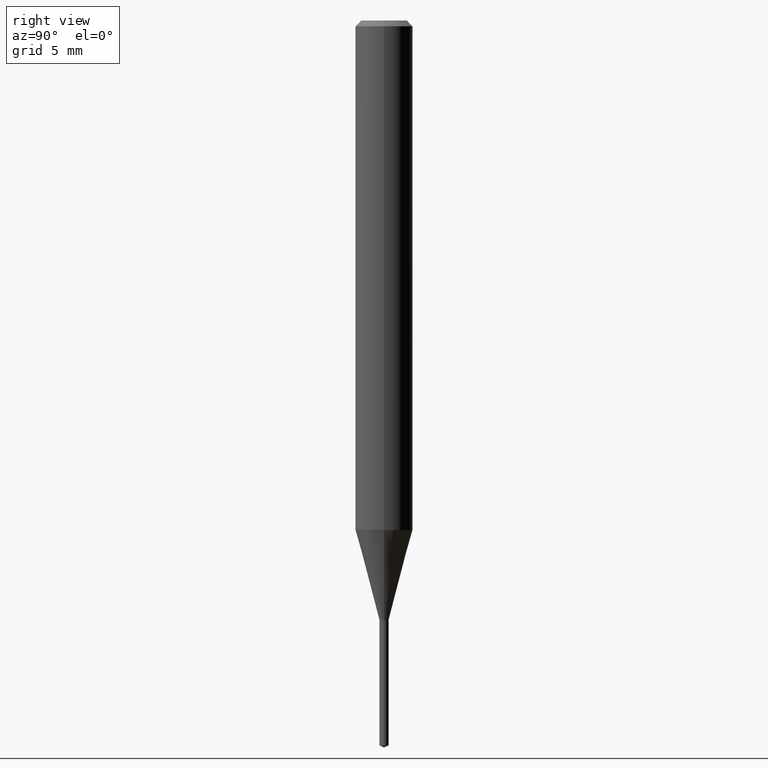
[diagram: clean part render]
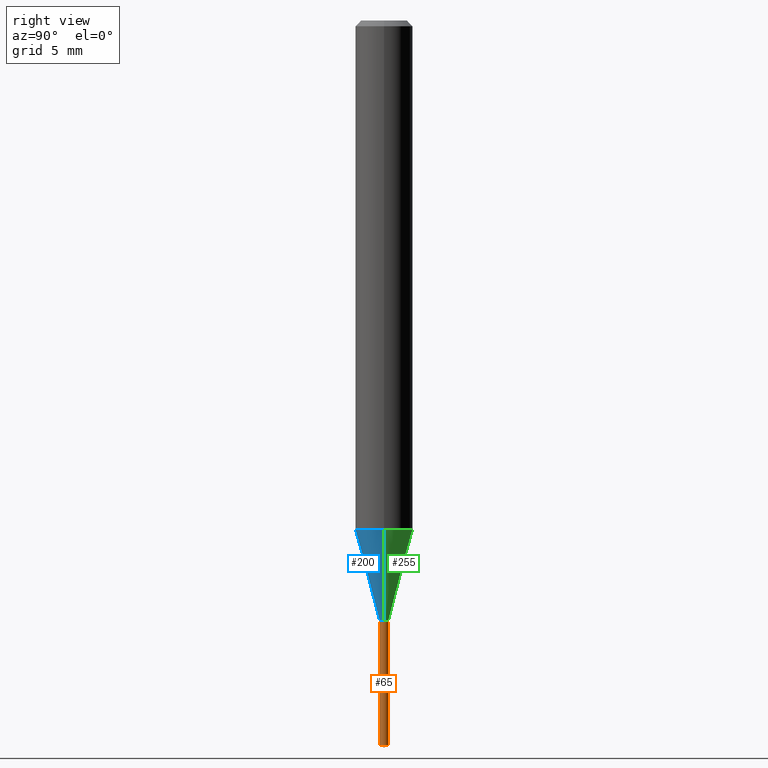
[diagram: same view with three faces highlighted in distinct colors, each labeled with its STEP entity id]
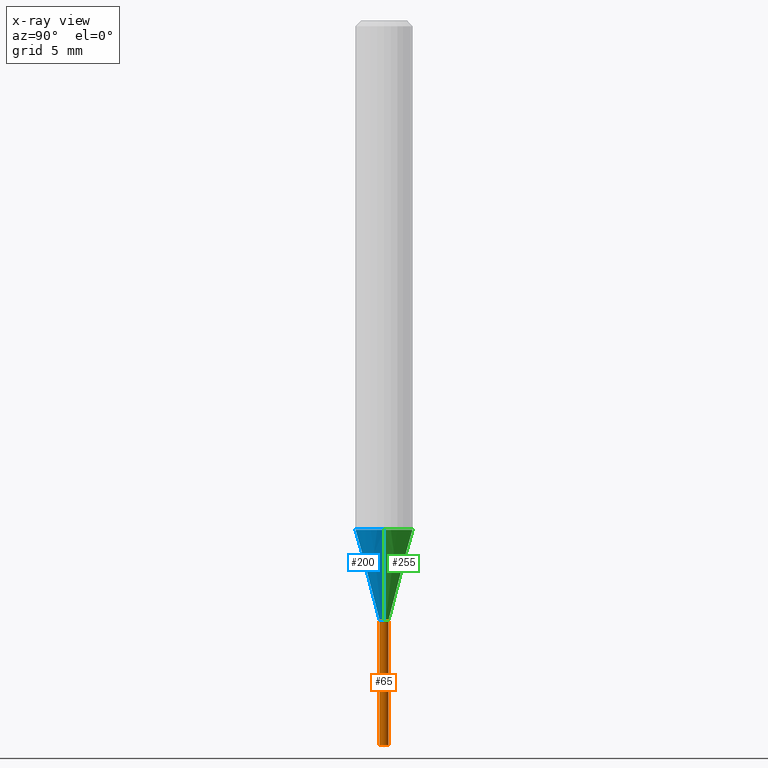
[diagram: x-ray of the same camera — body ghosted, the three highlighted faces saturated]
A machine part, right view with three faces highlighted in distinct colors.
The next image is the same camera in x-ray (body ghosted, the three faces saturated) — at least one of them is partly hidden behind the body in this view.
Their STEP definitions:

[orange] entity #65 — the highlighted cylindrical surface (edge-blend (fillet) strip) has radius 0.24 mm, axis along (-0, 0, 1).
#9 = VERTEX_POINT ( 'NONE', #413 ) ;
#42 = LINE ( 'NONE', #185, #244 ) ;
#43 = EDGE_CURVE ( 'NONE', #201, #97, #102, .T. ) ;
#44 = CARTESIAN_POINT ( 'NONE',  ( 6.714628852935969127E-17, 0.009449999999995684075, -1.236299999999999955 ) ) ;
#48 = VECTOR ( 'NONE', #105, 39.37007874015748143 ) ;
#57 = CARTESIAN_POINT ( 'NONE',  ( -6.598899730410497825E-17, -0.009450000000004316059, -1.236299999999999955 ) ) ;
#61 = VERTEX_POINT ( 'NONE', #457 ) ;
#65 = ADVANCED_FACE ( 'NONE', ( #335 ), #74, .T. ) ;
#73 = ORIENTED_EDGE ( 'NONE', *, *, #190, .T. ) ;
#74 = CYLINDRICAL_SURFACE ( 'NONE', #449, 0.009450000000000000067 ) ;
#77 = DIRECTION ( 'NONE',  ( -6.982962677686265922E-15, -1.000000000000000000, 0.000000000000000000 ) ) ;
#78 = EDGE_CURVE ( 'NONE', #9, #201, #42, .T. ) ;
#92 = ORIENTED_EDGE ( 'NONE', *, *, #143, .T. ) ;
#97 = VERTEX_POINT ( 'NONE', #380 ) ;
#102 = CIRCLE ( 'NONE', #269, 0.009450000000000000067 ) ;
#105 = DIRECTION ( 'NONE',  ( -2.445453492125453683E-29, 3.491503269448233447E-15, 1.000000000000000000 ) ) ;
#109 = CARTESIAN_POINT ( 'NONE',  ( 3.023333085086683703E-29, -4.316518379211780118E-15, -1.236299999999999955 ) ) ;
#143 = EDGE_CURVE ( 'NONE', #61, #97, #228, .T. ) ;
#159 = AXIS2_PLACEMENT_3D ( 'NONE', #258, #180, #262 ) ;
#180 = DIRECTION ( 'NONE',  ( -2.445453492125453683E-29, 3.491503269448233447E-15, 1.000000000000000000 ) ) ;
#185 = CARTESIAN_POINT ( 'NONE',  ( -6.598899730410497825E-17, -0.009450000000004316059, -1.236299999999999955 ) ) ;
#190 = EDGE_CURVE ( 'NONE', #9, #61, #303, .T. ) ;
#201 = VERTEX_POINT ( 'NONE', #57 ) ;
#202 = EDGE_LOOP ( 'NONE', ( #73, #92, #327, #476 ) ) ;
#228 = LINE ( 'NONE', #44, #48 ) ;
#244 = VECTOR ( 'NONE', #291, 39.37007874015748143 ) ;
#258 = CARTESIAN_POINT ( 'NONE',  ( 3.647885748960549596E-29, -5.208225244576422612E-15, -1.491693392630435211 ) ) ;
#262 = DIRECTION ( 'NONE',  ( -6.982962677686265922E-15, -1.000000000000000000, 0.000000000000000000 ) ) ;
#269 = AXIS2_PLACEMENT_3D ( 'NONE', #485, #410, #452 ) ;
#291 = DIRECTION ( 'NONE',  ( -2.445453492125453683E-29, 3.491503269448233447E-15, 1.000000000000000000 ) ) ;
#303 = CIRCLE ( 'NONE', #159, 0.009450000000000000067 ) ;
#327 = ORIENTED_EDGE ( 'NONE', *, *, #43, .F. ) ;
#335 = FACE_OUTER_BOUND ( 'NONE', #202, .T. ) ;
#380 = CARTESIAN_POINT ( 'NONE',  ( 6.714628852936598983E-17, 0.009449999999995684075, -1.236299999999999955 ) ) ;
#410 = DIRECTION ( 'NONE',  ( -2.445453492125453683E-29, 3.491503269448233447E-15, 1.000000000000000000 ) ) ;
#413 = CARTESIAN_POINT ( 'NONE',  ( -6.598899730409874132E-17, -0.009450000000005209441, -1.491693392630435211 ) ) ;
#449 = AXIS2_PLACEMENT_3D ( 'NONE', #109, #484, #77 ) ;
#452 = DIRECTION ( 'NONE',  ( -6.982962677686265922E-15, -1.000000000000000000, 0.000000000000000000 ) ) ;
#457 = CARTESIAN_POINT ( 'NONE',  ( 6.714628852936594053E-17, 0.009449999999994792427, -1.491693392630435211 ) ) ;
#476 = ORIENTED_EDGE ( 'NONE', *, *, #78, .F. ) ;
#484 = DIRECTION ( 'NONE',  ( -2.445453492125453683E-29, 3.491503269448233447E-15, 1.000000000000000000 ) ) ;
#485 = CARTESIAN_POINT ( 'NONE',  ( 3.023333085086683703E-29, -4.316518379211780118E-15, -1.236299999999999955 ) ) ;

[blue] entity #200 — the highlighted conical surface has half-angle 15 deg.
#7 = DIRECTION ( 'NONE',  ( -2.445468806185136597E-29, 3.491481338843145583E-15, 1.000000000000000000 ) ) ;
#19 = VERTEX_POINT ( 'NONE', #214 ) ;
#51 = DIRECTION ( 'NONE',  ( 0.2588190451025211281, 1.565188264969622954E-15, 0.9659258262890679791 ) ) ;
#81 = ORIENTED_EDGE ( 'NONE', *, *, #370, .T. ) ;
#85 = CARTESIAN_POINT ( 'NONE',  ( 3.016485772429365584E-29, -4.306742231463019698E-15, -1.233499999999999819 ) ) ;
#89 = DIRECTION ( 'NONE',  ( 1.000000000000000000, -6.982962677686265133E-15, 0.000000000000000000 ) ) ;
#91 = CARTESIAN_POINT ( 'NONE',  ( 0.009449999999999998332, -4.372731228767154900E-15, -1.233499999999999819 ) ) ;
#114 = CARTESIAN_POINT ( 'NONE',  ( -0.05905000000000013016, -3.240859612784714140E-15, -1.048390279944583448 ) ) ;
#121 = VECTOR ( 'NONE', #355, 39.37007874015748854 ) ;
#140 = CIRCLE ( 'NONE', #237, 0.05905000000000013016 ) ;
#153 = CONICAL_SURFACE ( 'NONE', #440, 0.009449999999999998332, 0.2617993877991498519 ) ;
#200 = ADVANCED_FACE ( 'NONE', ( #424 ), #153, .T. ) ;
#206 = VERTEX_POINT ( 'NONE', #241 ) ;
#207 = DIRECTION ( 'NONE',  ( 1.000000000000000000, -6.982962677686298265E-15, 0.000000000000000000 ) ) ;
#214 = CARTESIAN_POINT ( 'NONE',  ( 0.05905000000000013016, -4.072779044368429342E-15, -1.048390279944583448 ) ) ;
#216 = EDGE_CURVE ( 'NONE', #217, #319, #433, .T. ) ;
#217 = VERTEX_POINT ( 'NONE', #349 ) ;
#231 = CARTESIAN_POINT ( 'NONE',  ( -0.009449999999999998332, -4.239595942933689737E-15, -1.233499999999999819 ) ) ;
#233 = DIRECTION ( 'NONE',  ( -2.445468806185136597E-29, 3.491481338843145583E-15, 1.000000000000000000 ) ) ;
#237 = AXIS2_PLACEMENT_3D ( 'NONE', #357, #233, #89 ) ;
#241 = CARTESIAN_POINT ( 'NONE',  ( 0.009449999999999998332, -4.372731228767154900E-15, -1.233499999999999819 ) ) ;
#246 = CIRCLE ( 'NONE', #477, 0.009449999999999998332 ) ;
#247 = CARTESIAN_POINT ( 'NONE',  ( 3.016485772429365584E-29, -4.306742231463019698E-15, -1.233499999999999819 ) ) ;
#249 = EDGE_CURVE ( 'NONE', #319, #19, #140, .T. ) ;
#266 = EDGE_LOOP ( 'NONE', ( #365, #81, #397, #421 ) ) ;
#292 = EDGE_CURVE ( 'NONE', #206, #19, #469, .T. ) ;
#319 = VERTEX_POINT ( 'NONE', #114 ) ;
#349 = CARTESIAN_POINT ( 'NONE',  ( -0.009449999999999998332, -4.243611146473359590E-15, -1.233499999999999819 ) ) ;
#352 = VECTOR ( 'NONE', #51, 39.37007874015748854 ) ;
#355 = DIRECTION ( 'NONE',  ( -0.2588190451025211281, 5.211531920934547886E-15, 0.9659258262890679791 ) ) ;
#357 = CARTESIAN_POINT ( 'NONE',  ( 2.563805726312181007E-29, -3.660435098251054422E-15, -1.048390279944583448 ) ) ;
#363 = DIRECTION ( 'NONE',  ( -2.445468806185136597E-29, 3.491481338843145583E-15, 1.000000000000000000 ) ) ;
#365 = ORIENTED_EDGE ( 'NONE', *, *, #216, .F. ) ;
#370 = EDGE_CURVE ( 'NONE', #217, #206, #246, .T. ) ;
#389 = DIRECTION ( 'NONE',  ( 1.000000000000000000, -6.982962677686298265E-15, 0.000000000000000000 ) ) ;
#397 = ORIENTED_EDGE ( 'NONE', *, *, #292, .T. ) ;
#421 = ORIENTED_EDGE ( 'NONE', *, *, #249, .F. ) ;
#424 = FACE_OUTER_BOUND ( 'NONE', #266, .T. ) ;
#433 = LINE ( 'NONE', #231, #121 ) ;
#440 = AXIS2_PLACEMENT_3D ( 'NONE', #85, #7, #389 ) ;
#469 = LINE ( 'NONE', #91, #352 ) ;
#477 = AXIS2_PLACEMENT_3D ( 'NONE', #247, #363, #207 ) ;

[green] entity #255 — the highlighted conical surface has half-angle 15 deg.
#15 = CONICAL_SURFACE ( 'NONE', #203, 0.009449999999999998332, 0.2617993877991498519 ) ;
#19 = VERTEX_POINT ( 'NONE', #214 ) ;
#22 = EDGE_CURVE ( 'NONE', #19, #319, #56, .T. ) ;
#51 = DIRECTION ( 'NONE',  ( 0.2588190451025211281, 1.565188264969622954E-15, 0.9659258262890679791 ) ) ;
#55 = CARTESIAN_POINT ( 'NONE',  ( 3.016485772429365584E-29, -4.306742231463019698E-15, -1.233499999999999819 ) ) ;
#56 = CIRCLE ( 'NONE', #139, 0.05905000000000013016 ) ;
#91 = CARTESIAN_POINT ( 'NONE',  ( 0.009449999999999998332, -4.372731228767154900E-15, -1.233499999999999819 ) ) ;
#94 = ORIENTED_EDGE ( 'NONE', *, *, #292, .F. ) ;
#114 = CARTESIAN_POINT ( 'NONE',  ( -0.05905000000000013016, -3.240859612784714140E-15, -1.048390279944583448 ) ) ;
#121 = VECTOR ( 'NONE', #355, 39.37007874015748854 ) ;
#132 = ORIENTED_EDGE ( 'NONE', *, *, #22, .F. ) ;
#139 = AXIS2_PLACEMENT_3D ( 'NONE', #379, #416, #263 ) ;
#142 = ORIENTED_EDGE ( 'NONE', *, *, #216, .T. ) ;
#144 = CARTESIAN_POINT ( 'NONE',  ( 3.016485772429365584E-29, -4.306742231463019698E-15, -1.233499999999999819 ) ) ;
#152 = CIRCLE ( 'NONE', #316, 0.009449999999999998332 ) ;
#156 = EDGE_CURVE ( 'NONE', #206, #217, #152, .T. ) ;
#196 = DIRECTION ( 'NONE',  ( -2.445468806185136597E-29, 3.491481338843145583E-15, 1.000000000000000000 ) ) ;
#203 = AXIS2_PLACEMENT_3D ( 'NONE', #55, #196, #351 ) ;
#206 = VERTEX_POINT ( 'NONE', #241 ) ;
#214 = CARTESIAN_POINT ( 'NONE',  ( 0.05905000000000013016, -4.072779044368429342E-15, -1.048390279944583448 ) ) ;
#216 = EDGE_CURVE ( 'NONE', #217, #319, #433, .T. ) ;
#217 = VERTEX_POINT ( 'NONE', #349 ) ;
#231 = CARTESIAN_POINT ( 'NONE',  ( -0.009449999999999998332, -4.239595942933689737E-15, -1.233499999999999819 ) ) ;
#241 = CARTESIAN_POINT ( 'NONE',  ( 0.009449999999999998332, -4.372731228767154900E-15, -1.233499999999999819 ) ) ;
#255 = ADVANCED_FACE ( 'NONE', ( #436 ), #15, .T. ) ;
#263 = DIRECTION ( 'NONE',  ( 1.000000000000000000, -6.982962677686265133E-15, 0.000000000000000000 ) ) ;
#292 = EDGE_CURVE ( 'NONE', #206, #19, #469, .T. ) ;
#316 = AXIS2_PLACEMENT_3D ( 'NONE', #144, #420, #460 ) ;
#319 = VERTEX_POINT ( 'NONE', #114 ) ;
#324 = ORIENTED_EDGE ( 'NONE', *, *, #156, .T. ) ;
#349 = CARTESIAN_POINT ( 'NONE',  ( -0.009449999999999998332, -4.243611146473359590E-15, -1.233499999999999819 ) ) ;
#351 = DIRECTION ( 'NONE',  ( 1.000000000000000000, -6.982962677686298265E-15, 0.000000000000000000 ) ) ;
#352 = VECTOR ( 'NONE', #51, 39.37007874015748854 ) ;
#355 = DIRECTION ( 'NONE',  ( -0.2588190451025211281, 5.211531920934547886E-15, 0.9659258262890679791 ) ) ;
#361 = EDGE_LOOP ( 'NONE', ( #324, #142, #132, #94 ) ) ;
#379 = CARTESIAN_POINT ( 'NONE',  ( 2.563805726312181007E-29, -3.660435098251054422E-15, -1.048390279944583448 ) ) ;
#416 = DIRECTION ( 'NONE',  ( -2.445468806185136597E-29, 3.491481338843145583E-15, 1.000000000000000000 ) ) ;
#420 = DIRECTION ( 'NONE',  ( -2.445468806185136597E-29, 3.491481338843145583E-15, 1.000000000000000000 ) ) ;
#433 = LINE ( 'NONE', #231, #121 ) ;
#436 = FACE_OUTER_BOUND ( 'NONE', #361, .T. ) ;
#460 = DIRECTION ( 'NONE',  ( 1.000000000000000000, -6.982962677686298265E-15, 0.000000000000000000 ) ) ;
#469 = LINE ( 'NONE', #91, #352 ) ;